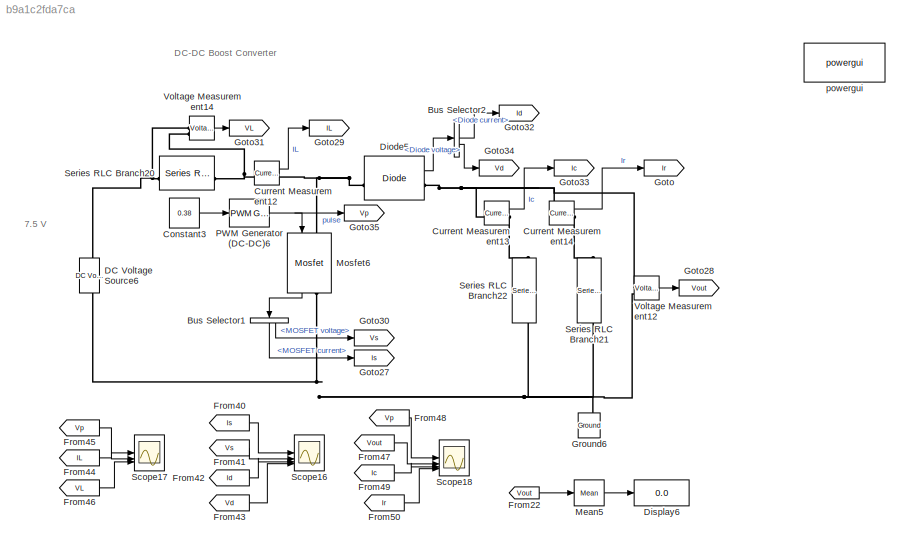
MODEL slx_b9a1c2fda7ca
KIND model
CONFIG AbsTol = auto
CONFIG EnableMultiTasking = off
CONFIG FixedStep = auto
CONFIG MaxStep = auto
CONFIG MinStep = auto
CONFIG RelTol = 1e-3
CONFIG SampleTimeConstraint = Unconstrained
CONFIG SolverName = VariableStepAuto
CONFIG StartTime = 0.0
CONFIG StopTime = 10.0
BLOCK [BusSelector] Bus Selector1
  NameLocation = left
  OutputSignals = MOSFET current,MOSFET voltage
BLOCK [BusSelector] Bus Selector2
  OutputSignals = Diode current,Diode voltage
BLOCK [Constant] Constant3
  Value = 0.38
BLOCK [Reference] Current Measurement12  REF=spsCurrentMeasurementLib/Current Measurement
  LibrarySourceBlock = sps_lib/Sensors and Measurements/Current Measurement
  SourceBlock = spsCurrentMeasurementLib/Current Measurement
  SourceType = Current Measurement
  UserDataPersistent = on
BLOCK [Reference] Current Measurement13  REF=spsCurrentMeasurementLib/Current Measurement
  LibrarySourceBlock = sps_lib/Sensors and Measurements/Current Measurement
  SourceBlock = spsCurrentMeasurementLib/Current Measurement
  SourceType = Current Measurement
  UserDataPersistent = on
BLOCK [Reference] Current Measurement14  REF=spsCurrentMeasurementLib/Current Measurement
  LibrarySourceBlock = sps_lib/Sensors and Measurements/Current Measurement
  SourceBlock = spsCurrentMeasurementLib/Current Measurement
  SourceType = Current Measurement
  UserDataPersistent = on
BLOCK [Reference] DC Voltage Source6  REF=spsDCVoltageSourceLib/DC Voltage Source
  LibrarySourceBlock = sps_lib/Sources/DC Voltage Source
  NameLocation = right
  SourceBlock = spsDCVoltageSourceLib/DC Voltage Source
  SourceType = DC Voltage Source
BLOCK [Reference] Diode5  REF=spsDiodeLib/Diode
  LibrarySourceBlock = sps_lib/Power Electronics/Diode
  SourceBlock = spsDiodeLib/Diode
  SourceType = Diode
BLOCK [Display] Display6
  Decimation = 1
BLOCK [From] From22
  GotoTag = Vout
  TagVisibility = global
BLOCK [From] From40
  GotoTag = Is
BLOCK [From] From41
  GotoTag = Vs
BLOCK [From] From42
  GotoTag = Id
BLOCK [From] From43
  GotoTag = Vd
BLOCK [From] From44
  GotoTag = IL
  TagVisibility = global
BLOCK [From] From45
  GotoTag = Vp
BLOCK [From] From46
  GotoTag = VL
  TagVisibility = global
BLOCK [From] From47
  GotoTag = Vout
  TagVisibility = global
BLOCK [From] From48
  GotoTag = Vp
BLOCK [From] From49
  GotoTag = Ic
BLOCK [From] From50
  GotoTag = Ir
BLOCK [Goto] Goto
  GotoTag = Ir
BLOCK [Goto] Goto27
  GotoTag = Is
BLOCK [Goto] Goto28
  GotoTag = Vout
  TagVisibility = global
BLOCK [Goto] Goto29
  GotoTag = IL
  TagVisibility = global
BLOCK [Goto] Goto30
  GotoTag = Vs
BLOCK [Goto] Goto31
  GotoTag = VL
  TagVisibility = global
BLOCK [Goto] Goto32
  GotoTag = Id
BLOCK [Goto] Goto33
  GotoTag = Ic
BLOCK [Goto] Goto34
  GotoTag = Vd
BLOCK [Goto] Goto35
  GotoTag = Vp
BLOCK [Reference] Ground6  REF=spsGroundLib/Ground
  LibrarySourceBlock = sps_lib/Utilities/Ground
  NameLocation = right
  SourceBlock = spsGroundLib/Ground
  SourceType = Ground
BLOCK [Reference] Mean5  REF=spsMeanLib/Mean
  LibrarySourceBlock = sps_lib/Sensors and Measurements/Mean
  SourceBlock = spsMeanLib/Mean
  SourceType = Mean
BLOCK [Reference] Mosfet6  REF=spsMosfetLib/Mosfet
  LibrarySourceBlock = sps_lib/Power Electronics/Mosfet
  NameLocation = left
  SourceBlock = spsMosfetLib/Mosfet
  SourceType = Mosfet
BLOCK [Reference] PWM Generator (DC-DC)6  REF=spsPWMGeneratorDCDCLib/PWM Generator
(DC-DC)
  LibrarySourceBlock = sps_lib/Power Electronics/Power Electronics Control/PWM Generator\n(DC-DC)
  SourceBlock = spsPWMGeneratorDCDCLib/PWM Generator\n(DC-DC)
  SourceType = PWM Generator (DC-DC)
BLOCK [Scope] Scope16
  Floating = off
  NumInputPorts = 4
  ScopeSpecificationString = Simulink.scopes.TimeScopeBlockCfg('CurrentConfiguration', extmgr.ConfigurationSet(extmgr.Configuration('Core','General UI',true,'FigureColor',[0 0 0]),extmgr.Configuration('Core','Source UI',true),extmgr.Configuration('Sources','WiredSimulink',true,'DataLoggingSaveFormat','StructureWithTime','DataLoggingDecimation','1','DataLoggingVariableName','ScopeData1'),extmgr.Configuration('Visuals','Time Do...<+4335ch>
BLOCK [Scope] Scope17
  Floating = off
  NumInputPorts = 3
  ScopeSpecificationString = Simulink.scopes.TimeScopeBlockCfg('CurrentConfiguration', extmgr.ConfigurationSet(extmgr.Configuration('Core','General UI',true,'FigureColor',[0 0 0]),extmgr.Configuration('Core','Source UI',true),extmgr.Configuration('Sources','WiredSimulink',true,'DataLoggingSaveFormat','StructureWithTime','DataLoggingDecimation','1','DataLoggingVariableName','ScopeData2'),extmgr.Configuration('Visuals','Time Do...<+3134ch>
BLOCK [Scope] Scope18
  Floating = off
  NumInputPorts = 4
  ScopeSpecificationString = Simulink.scopes.TimeScopeBlockCfg('CurrentConfiguration', extmgr.ConfigurationSet(extmgr.Configuration('Core','General UI',true,'FigureColor',[0 0 0]),extmgr.Configuration('Core','Source UI',true),extmgr.Configuration('Sources','WiredSimulink',true,'DataLoggingSaveFormat','StructureWithTime','DataLoggingDecimation','1'),extmgr.Configuration('Visuals','Time Domain',true,'PlotType','Line','Serialize...<+4234ch>
BLOCK [Reference] Series RLC Branch20  REF=spsSeriesRLCBranchLib/Series RLC Branch
  LibrarySourceBlock = sps_lib/Passives/Series RLC Branch
  SourceBlock = spsSeriesRLCBranchLib/Series RLC Branch
  SourceType = Series RLC Branch
BLOCK [Reference] Series RLC Branch21  REF=spsSeriesRLCBranchLib/Series RLC Branch
  LibrarySourceBlock = sps_lib/Passives/Series RLC Branch
  NameLocation = left
  SourceBlock = spsSeriesRLCBranchLib/Series RLC Branch
  SourceType = Series RLC Branch
BLOCK [Reference] Series RLC Branch22  REF=spsSeriesRLCBranchLib/Series RLC Branch
  LibrarySourceBlock = sps_lib/Passives/Series RLC Branch
  NameLocation = left
  SourceBlock = spsSeriesRLCBranchLib/Series RLC Branch
  SourceType = Series RLC Branch
BLOCK [Reference] Voltage Measurement12  REF=spsVoltageMeasurementLib/Voltage Measurement
  LibrarySourceBlock = sps_lib/Sensors and Measurements/Voltage Measurement
  SourceBlock = spsVoltageMeasurementLib/Voltage Measurement
  SourceType = Voltage Measurement
  UserDataPersistent = on
BLOCK [Reference] Voltage Measurement14  REF=spsVoltageMeasurementLib/Voltage Measurement
  LibrarySourceBlock = sps_lib/Sensors and Measurements/Voltage Measurement
  SourceBlock = spsVoltageMeasurementLib/Voltage Measurement
  SourceType = Voltage Measurement
  UserDataPersistent = on
BLOCK [Reference] powergui  REF=sps_lib/powergui
  LibrarySourceBlock = sps_lib/powergui
  Priority = 1
  SourceBlock = sps_lib/powergui
  SourceType = PSB option menu block
ANNOTATION (root): 7.5 V
ANNOTATION (root): DC-DC Boost Converter
LINE Bus Selector1:1 -> Goto27:1
LINE Bus Selector1:2 -> Goto30:1
LINE Bus Selector2:1 -> Goto32:1
LINE Bus Selector2:2 -> Goto34:1
LINE Constant3:1 -> PWM Generator (DC-DC)6:1
LINE Current Measurement12:1 -> Goto29:1
LINE Current Measurement13:1 -> Goto33:1
LINE Current Measurement14:1 -> Goto:1
LINE Diode5:1 -> Bus Selector2:1
LINE From22:1 -> Mean5:1
LINE From40:1 -> Scope16:1
LINE From41:1 -> Scope16:2
LINE From42:1 -> Scope16:3
LINE From43:1 -> Scope16:4
LINE From44:1 -> Scope17:2
LINE From45:1 -> Scope17:1
LINE From46:1 -> Scope17:3
LINE From47:1 -> Scope18:2
LINE From48:1 -> Scope18:1
LINE From49:1 -> Scope18:3
LINE From50:1 -> Scope18:4
LINE Mean5:1 -> Display6:1
LINE Mosfet6:1 -> Bus Selector1:1
NET PWM Generator (DC-DC)6:1 -> Goto35:1, Mosfet6:1
LINE Voltage Measurement12:1 -> Goto28:1
LINE Voltage Measurement14:1 -> Goto31:1
PNET net1: Current Measurement12:LConn1 -- Series RLC Branch20:RConn1 -- Voltage Measurement14:LConn2
PNET net2: Current Measurement12:RConn1 -- Diode5:LConn1 -- Mosfet6:LConn1
PNET net3: Current Measurement13:LConn1 -- Current Measurement14:LConn1 -- Diode5:RConn1 -- Voltage Measurement12:LConn1
PLINE Current Measurement13:RConn1 -- Series RLC Branch22:LConn1
PLINE Current Measurement14:RConn1 -- Series RLC Branch21:LConn1
PNET net4: DC Voltage Source6:LConn1 -- Ground6:LConn1 -- Mosfet6:RConn1 -- Series RLC Branch21:RConn1 -- Series RLC Branch22:RConn1 -- Voltage Measurement12:LConn2
PNET net5: DC Voltage Source6:RConn1 -- Series RLC Branch20:LConn1 -- Voltage Measurement14:LConn1
note: NET lines group one-source signal fan-out (src -> all destinations, sorted); 1:1 wires keep LINE; PNET lines group multi-terminal physical nets as a canonical sorted terminal list (undirected conserving connections); 2-terminal nets keep the pairwise PLINE form
